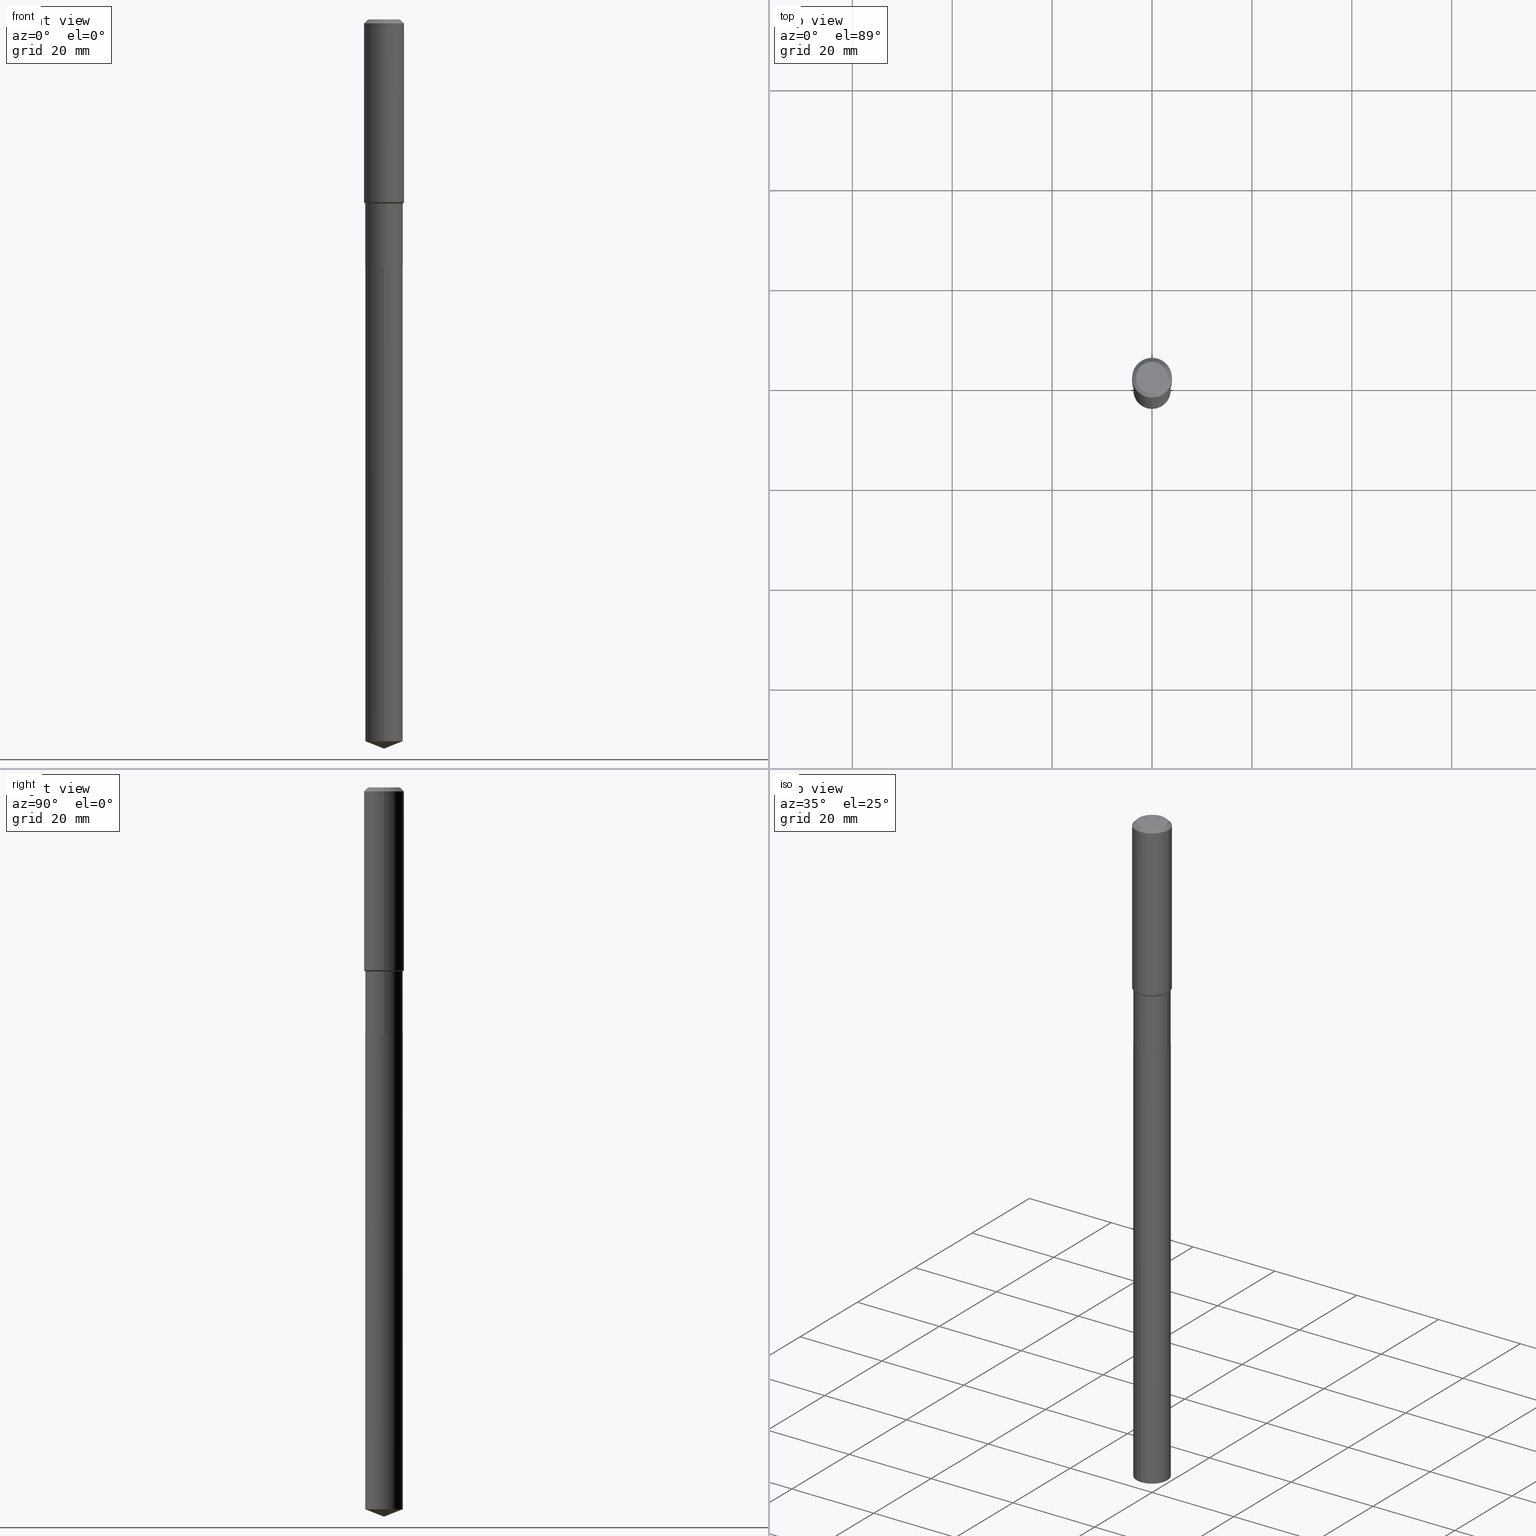
[diagram: canonical four-view strip — front | top / right | iso, engineering-drawing reading convention]
A machine part, canonical four-view strip (front | top / right | iso — engineering-drawing reading convention). The complete STEP part file that produces these views, byte-faithful:
ISO-10303-21;
HEADER;
FILE_DESCRIPTION (( 'STEP AP203' ),
    '1' );
FILE_NAME ('66754.STEP',
    '2024-04-25T05:22:18',
    ( '' ),
    ( '' ),
    'SwSTEP 2.0',
    'SolidWorks 2023',
    '' );
FILE_SCHEMA (( 'CONFIG_CONTROL_DESIGN' ));
ENDSEC;

DATA;
#1 = AXIS2_PLACEMENT_3D ( 'NONE', #55, #320, #208 ) ;
#2 = ORIENTED_EDGE ( 'NONE', *, *, #288, .F. ) ;
#3 = CARTESIAN_POINT ( 'NONE',  ( 1.391446264860343050E-28, -1.986576865855824587E-14, -5.689839118275454410 ) ) ;
#4 = ORIENTED_EDGE ( 'NONE', *, *, #178, .T. ) ;
#5 = ORIENTED_EDGE ( 'NONE', *, *, #93, .T. ) ;
#6 = CARTESIAN_POINT ( 'NONE',  ( 0.1476499999999999480, -6.099617898958972494E-15, -1.451700000000000212 ) ) ;
#7 = CONICAL_SURFACE ( 'NONE', #1, 0.1575000000000000011, 0.7853981633974449483 ) ;
#8 = VERTEX_POINT ( 'NONE', #17 ) ;
#9 = ADVANCED_FACE ( 'NONE', ( #127 ), #169, .F. ) ;
#10 = DIRECTION ( 'NONE',  ( 1.000000000000000000, -6.982962677686267499E-15, 4.876176775795936353E-29 ) ) ;
#11 = CC_DESIGN_PERSON_AND_ORGANIZATION_ASSIGNMENT ( #332, #215, ( #286 ) ) ;
#12 = ORIENTED_EDGE ( 'NONE', *, *, #407, .T. ) ;
#13 = DIRECTION ( 'NONE',  ( -2.445505750624633031E-29, 3.491428432303039480E-15, 1.000000000000000000 ) ) ;
#14 = ORIENTED_EDGE ( 'NONE', *, *, #477, .F. ) ;
#15 = CARTESIAN_POINT ( 'NONE',  ( 0.1476500000000000312, -7.799271014707815422E-15, -1.938499999999999890 ) ) ;
#16 = CIRCLE ( 'NONE', #474, 0.1476499999999999480 ) ;
#17 = CARTESIAN_POINT ( 'NONE',  ( 1.405676705459038823E-28, -2.006873062887787346E-14, -5.748000000000000220 ) ) ;
#18 = CARTESIAN_POINT ( 'NONE',  ( 3.550087065938963702E-29, -5.068583459598595410E-15, -1.451700000000000212 ) ) ;
#19 = DIRECTION ( 'NONE',  ( -2.445468806185136597E-29, 3.491481338843145583E-15, 1.000000000000000000 ) ) ;
#20 = CARTESIAN_POINT ( 'NONE',  ( 7.703226739483228723E-31, -1.099816621735597661E-16, -0.03150000000000019451 ) ) ;
#21 = DIRECTION ( 'NONE',  ( -2.445468806185136597E-29, 3.491481338843145583E-15, 1.000000000000000000 ) ) ;
#22 = AXIS2_PLACEMENT_3D ( 'NONE', #270, #267, #424 ) ;
#23 = EDGE_CURVE ( 'NONE', #56, #295, #155, .T. ) ;
#24 = FACE_OUTER_BOUND ( 'NONE', #297, .T. ) ;
#25 = CALENDAR_DATE ( 2024, 25, 4 ) ;
#26 = DATE_AND_TIME ( #72, #433 ) ;
#27 = ADVANCED_FACE ( 'NONE', ( #165 ), #167, .T. ) ;
#28 = DIRECTION ( 'NONE',  ( -0.7071067811865451302, 2.468850131082231817E-15, -0.7071067811865499042 ) ) ;
#29 = CIRCLE ( 'NONE', #70, 0.1260000000000000009 ) ;
#30 = COORDINATED_UNIVERSAL_TIME_OFFSET ( 5, 0, .BEHIND. ) ;
#31 = DIRECTION ( 'NONE',  ( -2.445468806185136597E-29, 3.491481338843145583E-15, 1.000000000000000000 ) ) ;
#32 = APPROVAL_ROLE ( '' ) ;
#33 = APPLICATION_CONTEXT ( 'configuration controlled 3d designs of mechanical parts and assemblies' ) ;
#34 = CARTESIAN_POINT ( 'NONE',  ( 0.1575000000000000011, -1.209798283909146741E-15, -0.03150000000000019451 ) ) ;
#35 = VERTEX_POINT ( 'NONE', #303 ) ;
#36 = CONICAL_SURFACE ( 'NONE', #306, 0.1471500000000000030, 0.7853981633975849475 ) ;
#37 = EDGE_LOOP ( 'NONE', ( #454, #150, #4, #352 ) ) ;
#38 = ORIENTED_EDGE ( 'NONE', *, *, #229, .F. ) ;
#39 = ORIENTED_EDGE ( 'NONE', *, *, #61, .T. ) ;
#40 = EDGE_CURVE ( 'NONE', #193, #35, #275, .T. ) ;
#41 = EDGE_CURVE ( 'NONE', #8, #203, #434, .T. ) ;
#42 = CARTESIAN_POINT ( 'NONE',  ( 1.049116349349926986E-15, 0.1476499999999801305, -5.689839118275454410 ) ) ;
#43 = VECTOR ( 'NONE', #48, 39.37007874015748854 ) ;
#44 = LOCAL_TIME ( 1, 22, 18.00000000000000000, #479 ) ;
#45 = VERTEX_POINT ( 'NONE', #91 ) ;
#46 = CARTESIAN_POINT ( 'NONE',  ( -0.1575000000000001676, -3.915087559588830636E-15, -1.441850000000000076 ) ) ;
#47 = DIRECTION ( 'NONE',  ( -2.445468806185136597E-29, 3.491481338843145583E-15, 1.000000000000000000 ) ) ;
#48 = DIRECTION ( 'NONE',  ( 6.611014441532060278E-15, 0.9304175679820263500, 0.3665012267242925281 ) ) ;
#49 = ORIENTED_EDGE ( 'NONE', *, *, #93, .F. ) ;
#50 = CARTESIAN_POINT ( 'NONE',  ( -0.1575000000000000011, -1.452982206470116048E-15, -0.03150000000000019451 ) ) ;
#51 = CARTESIAN_POINT ( 'NONE',  ( 7.703226739483228723E-31, -1.099816621735597661E-16, -0.03150000000000019451 ) ) ;
#52 = AXIS2_PLACEMENT_3D ( 'NONE', #345, #13, #219 ) ;
#53 = CC_DESIGN_APPROVAL ( #110, ( #286 ) ) ;
#54 = DIRECTION ( 'NONE',  ( 1.000000000000000000, 0.000000000000000000, 0.000000000000000000 ) ) ;
#55 = CARTESIAN_POINT ( 'NONE',  ( 7.703226739483228723E-31, -1.099816621735597661E-16, -0.03150000000000019451 ) ) ;
#56 = VERTEX_POINT ( 'NONE', #243 ) ;
#57 = DATE_AND_TIME ( #242, #299 ) ;
#58 = FACE_OUTER_BOUND ( 'NONE', #192, .T. ) ;
#59 = FACE_OUTER_BOUND ( 'NONE', #130, .T. ) ;
#60 = PRODUCT_DEFINITION_SHAPE ( 'NONE', 'NONE',  #210 ) ;
#61 = EDGE_CURVE ( 'NONE', #467, #257, #170, .T. ) ;
#62 = DIRECTION ( 'NONE',  ( -2.445505750624633031E-29, 3.491428432303039480E-15, 1.000000000000000000 ) ) ;
#63 = LOCAL_TIME ( 1, 22, 18.00000000000000000, #403 ) ;
#64 = DIRECTION ( 'NONE',  ( 2.438088387897960049E-29, -3.491481338843145188E-15, -1.000000000000000000 ) ) ;
#65 = DIRECTION ( 'NONE',  ( 1.000000000000000000, -6.982962677686266711E-15, 4.876176775795935793E-29 ) ) ;
#66 = ADVANCED_FACE ( 'NONE', ( #59 ), #171, .T. ) ;
#67 = APPROVAL_ROLE ( '' ) ;
#68 = DIRECTION ( 'NONE',  ( 1.000000000000000000, -6.982962677686269077E-15, 0.000000000000000000 ) ) ;
#69 = CALENDAR_DATE ( 2024, 25, 4 ) ;
#70 = AXIS2_PLACEMENT_3D ( 'NONE', #141, #75, #488 ) ;
#71 = DIRECTION ( 'NONE',  ( -2.445468806185136597E-29, 3.491481338843145583E-15, 1.000000000000000000 ) ) ;
#72 = CALENDAR_DATE ( 2024, 25, 4 ) ;
#73 = DIRECTION ( 'NONE',  ( -2.445505750624633031E-29, 3.491428432303039480E-15, 1.000000000000000000 ) ) ;
#74 = ADVANCED_FACE ( 'NONE', ( #198 ), #88, .T. ) ;
#75 = DIRECTION ( 'NONE',  ( -2.445468806185136597E-29, 3.491481338843145583E-15, 1.000000000000000000 ) ) ;
#76 = ORIENTED_EDGE ( 'NONE', *, *, #461, .F. ) ;
#77 = PERSON_AND_ORGANIZATION ( #363, #164 ) ;
#78 = EDGE_CURVE ( 'NONE', #35, #153, #445, .T. ) ;
#79 = ORIENTED_EDGE ( 'NONE', *, *, #176, .T. ) ;
#80 = CIRCLE ( 'NONE', #156, 0.1476500000000000035 ) ;
#81 = ORIENTED_EDGE ( 'NONE', *, *, #329, .F. ) ;
#82 = EDGE_LOOP ( 'NONE', ( #124, #85, #122, #264 ) ) ;
#83 = ADVANCED_FACE ( 'NONE', ( #484 ), #145, .T. ) ;
#84 = CARTESIAN_POINT ( 'NONE',  ( -1.031034439360329753E-15, -0.1476500000000068036, -1.938999999999999169 ) ) ;
#85 = ORIENTED_EDGE ( 'NONE', *, *, #90, .T. ) ;
#86 = FACE_OUTER_BOUND ( 'NONE', #95, .T. ) ;
#87 = CIRCLE ( 'NONE', #359, 0.1476500000000000035 ) ;
#88 = CYLINDRICAL_SURFACE ( 'NONE', #381, 0.1476500000000000035 ) ;
#89 = LINE ( 'NONE', #84, #232 ) ;
#90 = EDGE_CURVE ( 'NONE', #45, #335, #379, .T. ) ;
#91 = CARTESIAN_POINT ( 'NONE',  ( -0.1476500000000000312, -4.869293668123228136E-15, -1.938499999999999890 ) ) ;
#92 = DIRECTION ( 'NONE',  ( 1.000000000000000000, -6.982962677686269077E-15, 0.000000000000000000 ) ) ;
#93 = EDGE_CURVE ( 'NONE', #295, #257, #406, .T. ) ;
#94 = ORIENTED_EDGE ( 'NONE', *, *, #293, .T. ) ;
#95 = EDGE_LOOP ( 'NONE', ( #154, #117, #337, #418 ) ) ;
#96 = CONICAL_SURFACE ( 'NONE', #323, 0.1476499999999999480, 0.7853981633974500554 ) ;
#97 = LINE ( 'NONE', #356, #432 ) ;
#98 = EDGE_CURVE ( 'NONE', #116, #292, #87, .T. ) ;
#99 = CARTESIAN_POINT ( 'NONE',  ( 1.405662378405402245E-28, -2.006893580044040431E-14, -5.748000000000000220 ) ) ;
#100 = CC_DESIGN_PERSON_AND_ORGANIZATION_ASSIGNMENT ( #186, #179, ( #210 ) ) ;
#101 = CARTESIAN_POINT ( 'NONE',  ( 4.740541280789886638E-29, -6.768236575347436760E-15, -1.938499999999999890 ) ) ;
#102 =( NAMED_UNIT ( * ) PLANE_ANGLE_UNIT ( ) SI_UNIT ( $, .RADIAN. ) );
#103 = CIRCLE ( 'NONE', #224, 0.1575000000000000011 ) ;
#104 = DATE_AND_TIME ( #25, #63 ) ;
#105 = APPROVAL_STATUS ( 'not_yet_approved' ) ;
#106 = DIRECTION ( 'NONE',  ( -6.982962677686265922E-15, -1.000000000000000000, 3.498627837350027099E-15 ) ) ;
#107 = DIRECTION ( 'NONE',  ( -0.7071067811865486830, 7.493145998870357316E-15, 0.7071067811865462405 ) ) ;
#108 = CARTESIAN_POINT ( 'NONE',  ( 0.1575000000000001676, -6.134008990146578875E-15, -1.441850000000000076 ) ) ;
#109 = DIRECTION ( 'NONE',  ( -6.982962677686266711E-15, -1.000000000000000000, 3.700437512582815297E-15 ) ) ;
#110 = APPROVAL ( #105, 'UNSPECIFIED' ) ;
#111 = CONICAL_SURFACE ( 'NONE', #52, 99.94676754583932166, 1.195550537616117293 ) ;
#112 = CARTESIAN_POINT ( 'NONE',  ( 0.1476499999999999480, -6.099617898958972494E-15, -1.451700000000000212 ) ) ;
#113 = ADVANCED_FACE ( 'NONE', ( #362 ), #36, .T. ) ;
#114 = ORIENTED_EDGE ( 'NONE', *, *, #253, .T. ) ;
#115 = CARTESIAN_POINT ( 'NONE',  ( -0.1471500000000000030, -5.724418680345871607E-15, -1.938999999999999835 ) ) ;
#116 = VERTEX_POINT ( 'NONE', #212 ) ;
#117 = ORIENTED_EDGE ( 'NONE', *, *, #78, .T. ) ;
#118 = AXIS2_PLACEMENT_3D ( 'NONE', #129, #149, #420 ) ;
#119 = ADVANCED_FACE ( 'NONE', ( #24 ), #175, .F. ) ;
#120 = ORIENTED_EDGE ( 'NONE', *, *, #413, .F. ) ;
#121 = CARTESIAN_POINT ( 'NONE',  ( 3.525999198198039773E-29, -5.034192368410989029E-15, -1.441850000000000076 ) ) ;
#122 = ORIENTED_EDGE ( 'NONE', *, *, #184, .T. ) ;
#123 = CARTESIAN_POINT ( 'NONE',  ( 1.049116349349835281E-15, 0.1476499999999932311, -1.939000000000000279 ) ) ;
#124 = ORIENTED_EDGE ( 'NONE', *, *, #444, .F. ) ;
#125 = APPROVAL ( #490, 'UNSPECIFIED' ) ;
#126 = DIRECTION ( 'NONE',  ( 1.000000000000000000, -6.982962677686267499E-15, 0.000000000000000000 ) ) ;
#127 = FACE_OUTER_BOUND ( 'NONE', #301, .T. ) ;
#128 = EDGE_CURVE ( 'NONE', #295, #56, #29, .T. ) ;
#129 = CARTESIAN_POINT ( 'NONE',  ( 3.525999198198039773E-29, -5.034192368410989029E-15, -1.441850000000000076 ) ) ;
#130 = EDGE_LOOP ( 'NONE', ( #409, #136, #79, #416 ) ) ;
#131 = FACE_OUTER_BOUND ( 'NONE', #223, .T. ) ;
#132 = ORIENTED_EDGE ( 'NONE', *, *, #168, .T. ) ;
#133 = APPROVAL_ROLE ( '' ) ;
#134 = DIRECTION ( 'NONE',  ( -1.000000000000000000, 6.982962677686265922E-15, -4.876176775795935793E-29 ) ) ;
#135 = ADVANCED_FACE ( 'NONE', ( #233 ), #231, .T. ) ;
#136 = ORIENTED_EDGE ( 'NONE', *, *, #204, .T. ) ;
#137 = CIRCLE ( 'NONE', #341, 0.1476500000000000312 ) ;
#138 = PLANE ( 'NONE',  #456 ) ;
#139 = MANIFOLD_SOLID_BREP ( 'Body-Move/Copy2[2]', #285 ) ;
#140 = DIRECTION ( 'NONE',  ( -1.000000000000000000, 6.982962677686265922E-15, 0.000000000000000000 ) ) ;
#141 = CARTESIAN_POINT ( 'NONE',  ( -9.439721640706201686E-47, 1.347742071746726764E-32, 3.860086710912459732E-18 ) ) ;
#142 = SECURITY_CLASSIFICATION_LEVEL ( 'unclassified' ) ;
#143 = CARTESIAN_POINT ( 'NONE',  ( 4.741764015192979440E-29, -6.769982316016858264E-15, -1.938999999999999835 ) ) ;
#144 = CIRCLE ( 'NONE', #118, 0.1575000000000001676 ) ;
#145 = CYLINDRICAL_SURFACE ( 'NONE', #365, 0.1476500000000000035 ) ;
#146 = SHAPE_DEFINITION_REPRESENTATION ( #60, #412 ) ;
#147 = CARTESIAN_POINT ( 'NONE',  ( -8.222305854227753158E-28, 1.173889790807361205E-13, 33.62207874015748388 ) ) ;
#148 = EDGE_CURVE ( 'NONE', #153, #440, #144, .T. ) ;
#149 = DIRECTION ( 'NONE',  ( -2.445468806185136597E-29, 3.491481338843145583E-15, 1.000000000000000000 ) ) ;
#150 = ORIENTED_EDGE ( 'NONE', *, *, #386, .T. ) ;
#151 = AXIS2_PLACEMENT_3D ( 'NONE', #147, #448, #106 ) ;
#152 = ORIENTED_EDGE ( 'NONE', *, *, #41, .F. ) ;
#153 = VERTEX_POINT ( 'NONE', #46 ) ;
#154 = ORIENTED_EDGE ( 'NONE', *, *, #40, .T. ) ;
#155 = CIRCLE ( 'NONE', #449, 0.1260000000000000009 ) ;
#156 = AXIS2_PLACEMENT_3D ( 'NONE', #3, #73, #369 ) ;
#157 = DIRECTION ( 'NONE',  ( 1.000000000000000000, -6.982962677686265922E-15, 0.000000000000000000 ) ) ;
#158 = ORIENTED_EDGE ( 'NONE', *, *, #40, .F. ) ;
#159 = DIRECTION ( 'NONE',  ( 0.7071067811866441621, -2.468850131083269169E-15, 0.7071067811864508723 ) ) ;
#160 = CARTESIAN_POINT ( 'NONE',  ( 3.550087065938963702E-29, -5.068583459598595410E-15, -1.451700000000000212 ) ) ;
#161 = CARTESIAN_POINT ( 'NONE',  ( 1.391446264860343050E-28, -1.986576865855824587E-14, -5.689839118275454410 ) ) ;
#162 = ORIENTED_EDGE ( 'NONE', *, *, #128, .T. ) ;
#163 = CARTESIAN_POINT ( 'NONE',  ( 0.1476500000000000035, -1.031034439360377281E-15, 7.199675009462699686E-30 ) ) ;
#164 = ORGANIZATION ( 'UNSPECIFIED', 'UNSPECIFIED', '' ) ;
#165 = FACE_OUTER_BOUND ( 'NONE', #82, .T. ) ;
#166 = PERSON_AND_ORGANIZATION_ROLE ( 'design_owner' ) ;
#167 = CYLINDRICAL_SURFACE ( 'NONE', #317, 0.1476500000000000035 ) ;
#168 = EDGE_CURVE ( 'NONE', #440, #153, #190, .T. ) ;
#169 = PLANE ( 'NONE',  #22 ) ;
#170 = CIRCLE ( 'NONE', #209, 0.1575000000000000011 ) ;
#171 = CONICAL_SURFACE ( 'NONE', #230, 0.1476499999999999480, 0.7853981633974500554 ) ;
#172 = VECTOR ( 'NONE', #28, 39.37007874015748143 ) ;
#173 = LOCAL_TIME ( 1, 22, 18.00000000000000000, #30 ) ;
#174 = CARTESIAN_POINT ( 'NONE',  ( 0.1471500000000000030, -7.797525274038393129E-15, -1.938999999999999835 ) ) ;
#175 = PLANE ( 'NONE',  #189 ) ;
#176 = EDGE_CURVE ( 'NONE', #193, #440, #266, .T. ) ;
#177 = DIRECTION ( 'NONE',  ( -2.445468806185136597E-29, 3.491481338843145583E-15, 1.000000000000000000 ) ) ;
#178 = EDGE_CURVE ( 'NONE', #473, #335, #343, .T. ) ;
#179 = PERSON_AND_ORGANIZATION_ROLE ( 'creator' ) ;
#180 = AXIS2_PLACEMENT_3D ( 'NONE', #143, #351, #278 ) ;
#181 = DATE_TIME_ROLE ( 'classification_date' ) ;
#182 = DIRECTION ( 'NONE',  ( 0.7071067811865451302, -7.319954787623248157E-15, -0.7071067811865499042 ) ) ;
#183 = PERSON_AND_ORGANIZATION_ROLE ( 'creator' ) ;
#184 = EDGE_CURVE ( 'NONE', #335, #193, #220, .T. ) ;
#185 = CARTESIAN_POINT ( 'NONE',  ( 3.550087065938963702E-29, -5.068583459598595410E-15, -1.451700000000000212 ) ) ;
#186 = PERSON_AND_ORGANIZATION ( #363, #164 ) ;
#187 = CARTESIAN_POINT ( 'NONE',  ( -0.1471500000000000030, -5.721769453171760406E-15, -1.938999999999999835 ) ) ;
#188 = ORIENTED_EDGE ( 'NONE', *, *, #98, .F. ) ;
#189 = AXIS2_PLACEMENT_3D ( 'NONE', #480, #321, #478 ) ;
#190 = CIRCLE ( 'NONE', #318, 0.1575000000000001676 ) ;
#191 = ORIENTED_EDGE ( 'NONE', *, *, #288, .T. ) ;
#192 = EDGE_LOOP ( 'NONE', ( #221, #12, #191, #380 ) ) ;
#193 = VERTEX_POINT ( 'NONE', #6 ) ;
#194 = CARTESIAN_POINT ( 'NONE',  ( 4.741764015192979440E-29, -6.769982316016858264E-15, -1.938999999999999835 ) ) ;
#195 = CC_DESIGN_APPROVAL ( #245, ( #210 ) ) ;
#196 = EDGE_LOOP ( 'NONE', ( #132, #305, #81, #120 ) ) ;
#197 = DIRECTION ( 'NONE',  ( -2.445505750624633031E-29, 3.491428432303039480E-15, 1.000000000000000000 ) ) ;
#198 = FACE_OUTER_BOUND ( 'NONE', #372, .T. ) ;
#199 = CARTESIAN_POINT ( 'NONE',  ( 7.703226739483228723E-31, -1.099816621735597661E-16, -0.03150000000000019451 ) ) ;
#200 = DIRECTION ( 'NONE',  ( -2.445468806185136597E-29, 3.491481338843145583E-15, 1.000000000000000000 ) ) ;
#201 = CARTESIAN_POINT ( 'NONE',  ( 4.741764015192979440E-29, -6.769982316016858264E-15, -1.938999999999999835 ) ) ;
#202 = CIRCLE ( 'NONE', #180, 0.1471500000000000030 ) ;
#203 = VERTEX_POINT ( 'NONE', #263 ) ;
#204 = EDGE_CURVE ( 'NONE', #35, #193, #16, .T. ) ;
#205 = DIRECTION ( 'NONE',  ( 0.000000000000000000, 0.000000000000000000, 1.000000000000000000 ) ) ;
#206 = ORIENTED_EDGE ( 'NONE', *, *, #148, .T. ) ;
#207 = APPROVAL_DATE_TIME ( #57, #245 ) ;
#208 = DIRECTION ( 'NONE',  ( -1.000000000000000000, 6.982962677686265922E-15, 0.000000000000000000 ) ) ;
#209 = AXIS2_PLACEMENT_3D ( 'NONE', #51, #309, #394 ) ;
#210 = PRODUCT_DEFINITION ( 'UNKNOWN', '', #286, #370 ) ;
#211 = AXIS2_PLACEMENT_3D ( 'NONE', #194, #339, #126 ) ;
#212 = CARTESIAN_POINT ( 'NONE',  ( -1.031034439360329753E-15, -0.1476500000000068036, -1.938999999999999169 ) ) ;
#213 = CARTESIAN_POINT ( 'NONE',  ( 0.000000000000000000, 0.000000000000000000, 0.000000000000000000 ) ) ;
#214 = CARTESIAN_POINT ( 'NONE',  ( 4.741764015192979440E-29, -6.769982316016858264E-15, -1.938999999999999835 ) ) ;
#215 = PERSON_AND_ORGANIZATION_ROLE ( 'design_supplier' ) ;
#216 = CARTESIAN_POINT ( 'NONE',  ( -0.1575000000000000011, 9.898349595620272334E-16, -0.03150000000000019451 ) ) ;
#217 = CARTESIAN_POINT ( 'NONE',  ( 0.1575000000000000011, -1.190510096822576026E-15, -0.03150000000000019451 ) ) ;
#218 = AXIS2_PLACEMENT_3D ( 'NONE', #201, #395, #469 ) ;
#219 = DIRECTION ( 'NONE',  ( -6.982962677686265922E-15, -1.000000000000000000, 3.498627837350027099E-15 ) ) ;
#220 = LINE ( 'NONE', #163, #240 ) ;
#221 = ORIENTED_EDGE ( 'NONE', *, *, #253, .F. ) ;
#222 = ADVANCED_FACE ( 'NONE', ( #86 ), #96, .T. ) ;
#223 = EDGE_LOOP ( 'NONE', ( #459, #162 ) ) ;
#224 = AXIS2_PLACEMENT_3D ( 'NONE', #199, #347, #157 ) ;
#225 = EDGE_LOOP ( 'NONE', ( #38, #241, #376 ) ) ;
#226 = ORIENTED_EDGE ( 'NONE', *, *, #128, .F. ) ;
#227 = CARTESIAN_POINT ( 'NONE',  ( 0.000000000000000000, 0.000000000000000000, 0.000000000000000000 ) ) ;
#228 = ORIENTED_EDGE ( 'NONE', *, *, #329, .T. ) ;
#229 = EDGE_CURVE ( 'NONE', #8, #260, #271, .T. ) ;
#230 = AXIS2_PLACEMENT_3D ( 'NONE', #160, #462, #421 ) ;
#231 = CONICAL_SURFACE ( 'NONE', #211, 0.1471500000000000030, 0.7853981633975849475 ) ;
#232 = VECTOR ( 'NONE', #458, 39.37007874015748143 ) ;
#233 = FACE_OUTER_BOUND ( 'NONE', #37, .T. ) ;
#234 = CC_DESIGN_SECURITY_CLASSIFICATION ( #334, ( #286 ) ) ;
#235 = CARTESIAN_POINT ( 'NONE',  ( 0.000000000000000000, 0.000000000000000000, 0.000000000000000000 ) ) ;
#236 = DIRECTION ( 'NONE',  ( -2.445468806185136597E-29, 3.491481338843145583E-15, 1.000000000000000000 ) ) ;
#237 = DIRECTION ( 'NONE',  ( -2.445468806185136597E-29, 3.491481338843145583E-15, 1.000000000000000000 ) ) ;
#238 = ORIENTED_EDGE ( 'NONE', *, *, #446, .F. ) ;
#239 =( NAMED_UNIT ( * ) SI_UNIT ( $, .STERADIAN. ) SOLID_ANGLE_UNIT ( ) );
#240 = VECTOR ( 'NONE', #302, 39.37007874015748143 ) ;
#241 = ORIENTED_EDGE ( 'NONE', *, *, #41, .T. ) ;
#242 = CALENDAR_DATE ( 2024, 25, 4 ) ;
#243 = CARTESIAN_POINT ( 'NONE',  ( -0.1260000000000000009, 9.348441284752484904E-16, 3.860086710906114178E-18 ) ) ;
#244 = CARTESIAN_POINT ( 'NONE',  ( 4.741764015192979440E-29, -6.769982316016858264E-15, -1.938999999999999835 ) ) ;
#245 = APPROVAL ( #431, 'UNSPECIFIED' ) ;
#246 = CARTESIAN_POINT ( 'NONE',  ( 4.741764015192979440E-29, -6.769982316016858264E-15, -1.938999999999999835 ) ) ;
#247 = APPLICATION_PROTOCOL_DEFINITION ( 'international standard', 'config_control_design', 1994, #310 ) ;
#248 = VECTOR ( 'NONE', #464, 39.37007874015748143 ) ;
#249 = AXIS2_PLACEMENT_3D ( 'NONE', #244, #315, #281 ) ;
#250 = CALENDAR_DATE ( 2024, 25, 4 ) ;
#251 = LINE ( 'NONE', #216, #172 ) ;
#252 = APPROVAL_DATE_TIME ( #287, #110 ) ;
#253 = EDGE_CURVE ( 'NONE', #260, #292, #383, .T. ) ;
#254 = CARTESIAN_POINT ( 'NONE',  ( -0.1476500000000000035, 1.049116349349787949E-15, -7.262807660761367809E-30 ) ) ;
#255 = PRODUCT ( '66754', '66754', '', ( #396 ) ) ;
#256 = DIRECTION ( 'NONE',  ( 1.000000000000000000, -6.982962677686266711E-15, 0.000000000000000000 ) ) ;
#257 = VERTEX_POINT ( 'NONE', #34 ) ;
#258 = EDGE_LOOP ( 'NONE', ( #226, #5, #228, #238 ) ) ;
#259 = DIMENSIONAL_EXPONENTS ( 1.000000000000000000, 0.000000000000000000, 0.000000000000000000, 0.000000000000000000, 0.000000000000000000, 0.000000000000000000, 0.000000000000000000 ) ;
#260 = VERTEX_POINT ( 'NONE', #42 ) ;
#261 = AXIS2_PLACEMENT_3D ( 'NONE', #18, #277, #314 ) ;
#262 = VERTEX_POINT ( 'NONE', #187 ) ;
#263 = CARTESIAN_POINT ( 'NONE',  ( -1.031034439360237850E-15, -0.1476500000000198487, -5.689839118275454410 ) ) ;
#264 = ORIENTED_EDGE ( 'NONE', *, *, #204, .F. ) ;
#265 = CC_DESIGN_PERSON_AND_ORGANIZATION_ASSIGNMENT ( #425, #166, ( #255 ) ) ;
#266 = LINE ( 'NONE', #112, #276 ) ;
#267 = DIRECTION ( 'NONE',  ( -2.438088387897960049E-29, 3.491481338843145188E-15, 1.000000000000000000 ) ) ;
#268 = CIRCLE ( 'NONE', #249, 0.1476500000000000035 ) ;
#269 = CARTESIAN_POINT ( 'NONE',  ( 1.405676831090387688E-28, -2.006873062887787346E-14, -5.748000000000000220 ) ) ;
#270 = CARTESIAN_POINT ( 'NONE',  ( 4.741764015192979440E-29, -6.769982316016858264E-15, -1.938999999999999835 ) ) ;
#271 = LINE ( 'NONE', #269, #43 ) ;
#272 = ORIENTED_EDGE ( 'NONE', *, *, #386, .F. ) ;
#273 = EDGE_LOOP ( 'NONE', ( #457, #114, #188, #2 ) ) ;
#274 = COORDINATED_UNIVERSAL_TIME_OFFSET ( 5, 0, .BEHIND. ) ;
#275 = CIRCLE ( 'NONE', #261, 0.1476499999999999480 ) ;
#276 = VECTOR ( 'NONE', #466, 39.37007874015748854 ) ;
#277 = DIRECTION ( 'NONE',  ( -2.445468806185136597E-29, 3.491481338843145583E-15, 1.000000000000000000 ) ) ;
#278 = DIRECTION ( 'NONE',  ( 1.000000000000000000, -6.982962677686267499E-15, 0.000000000000000000 ) ) ;
#279 = ADVANCED_FACE ( 'NONE', ( #417 ), #111, .T. ) ;
#280 = DIRECTION ( 'NONE',  ( 1.000000000000000000, -6.982962677686267499E-15, 0.000000000000000000 ) ) ;
#281 = DIRECTION ( 'NONE',  ( -6.982962677686266711E-15, -1.000000000000000000, 3.700437512582815297E-15 ) ) ;
#282 = CARTESIAN_POINT ( 'NONE',  ( -4.719860820353100843E-47, 6.738710358733633822E-33, 1.930043355456229866E-18 ) ) ;
#283 = MANIFOLD_SOLID_BREP ( 'Body-Move/Copy2[1]', #439 ) ;
#284 = LINE ( 'NONE', #115, #382 ) ;
#285 = CLOSED_SHELL ( 'NONE', ( #113, #384, #399, #222, #74, #27, #66, #355, #368, #393, #9, #135 ) ) ;
#286 = PRODUCT_DEFINITION_FORMATION_WITH_SPECIFIED_SOURCE ( 'ANY', '', #255, .NOT_KNOWN. ) ;
#287 = DATE_AND_TIME ( #250, #173 ) ;
#288 = EDGE_CURVE ( 'NONE', #203, #116, #89, .T. ) ;
#289 = AXIS2_PLACEMENT_3D ( 'NONE', #101, #322, #68 ) ;
#290 = FACE_OUTER_BOUND ( 'NONE', #430, .T. ) ;
#291 = APPROVAL_PERSON_ORGANIZATION ( #325, #125, #32 ) ;
#292 = VERTEX_POINT ( 'NONE', #367 ) ;
#293 = EDGE_CURVE ( 'NONE', #473, #262, #405, .T. ) ;
#294 = LINE ( 'NONE', #326, #422 ) ;
#295 = VERTEX_POINT ( 'NONE', #408 ) ;
#296 = ORIENTED_EDGE ( 'NONE', *, *, #413, .T. ) ;
#297 = EDGE_LOOP ( 'NONE', ( #375, #411 ) ) ;
#298 = CIRCLE ( 'NONE', #361, 0.1476500000000000035 ) ;
#299 = LOCAL_TIME ( 1, 22, 18.00000000000000000, #274 ) ;
#300 = CYLINDRICAL_SURFACE ( 'NONE', #414, 0.1575000000000000844 ) ;
#301 = EDGE_LOOP ( 'NONE', ( #377, #272 ) ) ;
#302 = DIRECTION ( 'NONE',  ( -2.445468806185136877E-29, 3.491481338843145188E-15, 1.000000000000000000 ) ) ;
#303 = CARTESIAN_POINT ( 'NONE',  ( -0.1476499999999999480, -4.869293668123228136E-15, -1.451700000000000212 ) ) ;
#304 = DIRECTION ( 'NONE',  ( -6.982962677686266711E-15, -1.000000000000000000, 0.000000000000000000 ) ) ;
#305 = ORIENTED_EDGE ( 'NONE', *, *, #477, .T. ) ;
#306 = AXIS2_PLACEMENT_3D ( 'NONE', #358, #21, #280 ) ;
#307 = CC_DESIGN_DATE_AND_TIME_ASSIGNMENT ( #26, #181, ( #334 ) ) ;
#308 = DIRECTION ( 'NONE',  ( 1.000000000000000000, -6.982962677686267499E-15, 0.000000000000000000 ) ) ;
#309 = DIRECTION ( 'NONE',  ( -2.445468806185136597E-29, 3.491481338843145583E-15, 1.000000000000000000 ) ) ;
#310 = APPLICATION_CONTEXT ( 'configuration controlled 3d designs of mechanical parts and assemblies' ) ;
#311 = LENGTH_MEASURE_WITH_UNIT ( LENGTH_MEASURE( 0.02539999999999999897 ), #428 );
#312 = ORIENTED_EDGE ( 'NONE', *, *, #23, .F. ) ;
#313 = APPLICATION_PROTOCOL_DEFINITION ( 'international standard', 'config_control_design', 1994, #33 ) ;
#314 = DIRECTION ( 'NONE',  ( 1.000000000000000000, -6.982962677686266711E-15, 0.000000000000000000 ) ) ;
#315 = DIRECTION ( 'NONE',  ( -2.445505750624633031E-29, 3.491428432303039480E-15, 1.000000000000000000 ) ) ;
#316 = FACE_OUTER_BOUND ( 'NONE', #196, .T. ) ;
#317 = AXIS2_PLACEMENT_3D ( 'NONE', #235, #237, #354 ) ;
#318 = AXIS2_PLACEMENT_3D ( 'NONE', #121, #71, #452 ) ;
#319 = EDGE_CURVE ( 'NONE', #203, #260, #298, .T. ) ;
#320 = DIRECTION ( 'NONE',  ( 2.445468806185136597E-29, -3.491481338843145583E-15, -1.000000000000000000 ) ) ;
#321 = DIRECTION ( 'NONE',  ( 2.445505750624633031E-29, -3.491428432303039480E-15, -1.000000000000000000 ) ) ;
#322 = DIRECTION ( 'NONE',  ( -2.445468806185136597E-29, 3.491481338843145583E-15, 1.000000000000000000 ) ) ;
#323 = AXIS2_PLACEMENT_3D ( 'NONE', #387, #371, #460 ) ;
#324 = APPROVAL_PERSON_ORGANIZATION ( #77, #110, #67 ) ;
#325 = PERSON_AND_ORGANIZATION ( #363, #164 ) ;
#326 = CARTESIAN_POINT ( 'NONE',  ( 0.1575000000000000844, -1.099816621735587677E-15, 7.679978421878603638E-30 ) ) ;
#327 = APPROVAL_DATE_TIME ( #401, #125 ) ;
#328 = FACE_OUTER_BOUND ( 'NONE', #225, .T. ) ;
#329 = EDGE_CURVE ( 'NONE', #257, #467, #103, .T. ) ;
#330 = UNCERTAINTY_MEASURE_WITH_UNIT (LENGTH_MEASURE( 1.000000000000000082E-05 ), #349, 'distance_accuracy_value', 'NONE');
#331 = CARTESIAN_POINT ( 'NONE',  ( 0.1471500000000000030, -7.797525274038393129E-15, -1.938999999999999835 ) ) ;
#332 = PERSON_AND_ORGANIZATION ( #363, #164 ) ;
#333 = AXIS2_PLACEMENT_3D ( 'NONE', #213, #177, #426 ) ;
#334 = SECURITY_CLASSIFICATION ( '', '', #142 ) ;
#335 = VERTEX_POINT ( 'NONE', #15 ) ;
#336 = ORIENTED_EDGE ( 'NONE', *, *, #178, .F. ) ;
#337 = ORIENTED_EDGE ( 'NONE', *, *, #168, .F. ) ;
#338 = CC_DESIGN_PERSON_AND_ORGANIZATION_ASSIGNMENT ( #441, #183, ( #286 ) ) ;
#339 = DIRECTION ( 'NONE',  ( -2.445468806185136597E-29, 3.491481338843145583E-15, 1.000000000000000000 ) ) ;
#340 = ORIENTED_EDGE ( 'NONE', *, *, #446, .T. ) ;
#341 = AXIS2_PLACEMENT_3D ( 'NONE', #443, #19, #92 ) ;
#342 = CC_DESIGN_APPROVAL ( #125, ( #334 ) ) ;
#343 = LINE ( 'NONE', #331, #465 ) ;
#344 = CARTESIAN_POINT ( 'NONE',  ( -9.439721640706201686E-47, 1.347742071746726764E-32, 3.860086710912459732E-18 ) ) ;
#345 = CARTESIAN_POINT ( 'NONE',  ( -8.222305854227753158E-28, 1.173889790807361205E-13, 33.62207874015748388 ) ) ;
#346 = EDGE_LOOP ( 'NONE', ( #152, #453, #455 ) ) ;
#347 = DIRECTION ( 'NONE',  ( -2.445468806185136597E-29, 3.491481338843145583E-15, 1.000000000000000000 ) ) ;
#348 = DIRECTION ( 'NONE',  ( 1.000000000000000000, -6.982962677686265922E-15, 4.876281427513067258E-29 ) ) ;
#349 =( CONVERSION_BASED_UNIT ( 'INCH', #311 ) LENGTH_UNIT ( ) NAMED_UNIT ( #259 ) );
#350 = AXIS2_PLACEMENT_3D ( 'NONE', #390, #205, #54 ) ;
#351 = DIRECTION ( 'NONE',  ( -2.445468806185136597E-29, 3.491481338843145583E-15, 1.000000000000000000 ) ) ;
#352 = ORIENTED_EDGE ( 'NONE', *, *, #90, .F. ) ;
#353 = DIRECTION ( 'NONE',  ( 2.445468806185136597E-29, -3.491481338843145583E-15, -1.000000000000000000 ) ) ;
#354 = DIRECTION ( 'NONE',  ( 1.000000000000000000, -6.982962677686266711E-15, 4.876176775795935793E-29 ) ) ;
#355 = ADVANCED_FACE ( 'NONE', ( #290 ), #300, .T. ) ;
#356 = CARTESIAN_POINT ( 'NONE',  ( -0.1575000000000000844, 1.119104808822158392E-15, -7.747322767151481189E-30 ) ) ;
#357 = ADVANCED_FACE ( 'NONE', ( #58 ), #437, .T. ) ;
#358 = CARTESIAN_POINT ( 'NONE',  ( 4.741764015192979440E-29, -6.769982316016858264E-15, -1.938999999999999835 ) ) ;
#359 = AXIS2_PLACEMENT_3D ( 'NONE', #246, #62, #109 ) ;
#360 = FACE_OUTER_BOUND ( 'NONE', #389, .T. ) ;
#361 = AXIS2_PLACEMENT_3D ( 'NONE', #161, #423, #304 ) ;
#362 = FACE_OUTER_BOUND ( 'NONE', #388, .T. ) ;
#363 = PERSON ( 'UNSPECIFIED', 'UNSPECIFIED', 'UNSPECIFIED', ('UNSPECIFIED'), ('UNSPECIFIED'), ('UNSPECIFIED') ) ;
#364 = PERSON_AND_ORGANIZATION ( #363, #164 ) ;
#365 = AXIS2_PLACEMENT_3D ( 'NONE', #214, #442, #476 ) ;
#366 = AXIS2_PLACEMENT_3D ( 'NONE', #20, #353, #140 ) ;
#367 = CARTESIAN_POINT ( 'NONE',  ( 1.049116349349927775E-15, 0.1476499999999932311, -1.939000000000000279 ) ) ;
#368 = ADVANCED_FACE ( 'NONE', ( #360 ), #7, .T. ) ;
#369 = DIRECTION ( 'NONE',  ( -6.982962677686266711E-15, -1.000000000000000000, 0.000000000000000000 ) ) ;
#370 = DESIGN_CONTEXT ( 'detailed design', #33, 'design' ) ;
#371 = DIRECTION ( 'NONE',  ( -2.445468806185136597E-29, 3.491481338843145583E-15, 1.000000000000000000 ) ) ;
#372 = EDGE_LOOP ( 'NONE', ( #427, #489, #158, #392 ) ) ;
#373 = LINE ( 'NONE', #254, #450 ) ;
#374 = CONICAL_SURFACE ( 'NONE', #151, 99.94676754583932166, 1.195550537616117293 ) ;
#375 = ORIENTED_EDGE ( 'NONE', *, *, #98, .T. ) ;
#376 = ORIENTED_EDGE ( 'NONE', *, *, #407, .F. ) ;
#377 = ORIENTED_EDGE ( 'NONE', *, *, #293, .F. ) ;
#378 = DIRECTION ( 'NONE',  ( -2.445468806185136597E-29, 3.491481338843145583E-15, 1.000000000000000000 ) ) ;
#379 = CIRCLE ( 'NONE', #289, 0.1476500000000000312 ) ;
#380 = ORIENTED_EDGE ( 'NONE', *, *, #470, .F. ) ;
#381 = AXIS2_PLACEMENT_3D ( 'NONE', #385, #47, #65 ) ;
#382 = VECTOR ( 'NONE', #410, 39.37007874015748143 ) ;
#383 = LINE ( 'NONE', #123, #451 ) ;
#384 = ADVANCED_FACE ( 'NONE', ( #472 ), #482, .T. ) ;
#385 = CARTESIAN_POINT ( 'NONE',  ( 0.000000000000000000, 0.000000000000000000, 0.000000000000000000 ) ) ;
#386 = EDGE_CURVE ( 'NONE', #262, #473, #202, .T. ) ;
#387 = CARTESIAN_POINT ( 'NONE',  ( 3.550087065938963702E-29, -5.068583459598595410E-15, -1.451700000000000212 ) ) ;
#388 = EDGE_LOOP ( 'NONE', ( #94, #415, #76, #336 ) ) ;
#389 = EDGE_LOOP ( 'NONE', ( #49, #312, #340, #39 ) ) ;
#390 = CARTESIAN_POINT ( 'NONE',  ( 0.000000000000000000, 0.000000000000000000, 0.000000000000000000 ) ) ;
#391 = AXIS2_PLACEMENT_3D ( 'NONE', #463, #31, #308 ) ;
#392 = ORIENTED_EDGE ( 'NONE', *, *, #184, .F. ) ;
#393 = ADVANCED_FACE ( 'NONE', ( #131 ), #138, .F. ) ;
#394 = DIRECTION ( 'NONE',  ( 1.000000000000000000, -6.982962677686265922E-15, 0.000000000000000000 ) ) ;
#395 = DIRECTION ( 'NONE',  ( -2.445505750624633031E-29, 3.491428432303039480E-15, 1.000000000000000000 ) ) ;
#396 = MECHANICAL_CONTEXT ( 'NONE', #310, 'mechanical' ) ;
#397 = VECTOR ( 'NONE', #107, 39.37007874015748854 ) ;
#398 =( GEOMETRIC_REPRESENTATION_CONTEXT ( 3 ) GLOBAL_UNCERTAINTY_ASSIGNED_CONTEXT ( ( #330 ) ) GLOBAL_UNIT_ASSIGNED_CONTEXT ( ( #349, #102, #239 ) ) REPRESENTATION_CONTEXT ( 'NONE', 'WORKASPACE' ) );
#399 = ADVANCED_FACE ( 'NONE', ( #316 ), #475, .T. ) ;
#400 = CARTESIAN_POINT ( 'NONE',  ( -0.1476499999999999480, -4.019467110248807855E-15, -1.451700000000000212 ) ) ;
#401 = DATE_AND_TIME ( #69, #44 ) ;
#402 = ADVANCED_FACE ( 'NONE', ( #328 ), #374, .T. ) ;
#403 = COORDINATED_UNIVERSAL_TIME_OFFSET ( 5, 0, .BEHIND. ) ;
#404 = DIRECTION ( 'NONE',  ( -2.445468806185136877E-29, 3.491481338843145188E-15, 1.000000000000000000 ) ) ;
#405 = CIRCLE ( 'NONE', #391, 0.1471500000000000030 ) ;
#406 = LINE ( 'NONE', #217, #481 ) ;
#407 = EDGE_CURVE ( 'NONE', #260, #203, #80, .T. ) ;
#408 = CARTESIAN_POINT ( 'NONE',  ( 0.1260000000000000009, -1.027466422270894443E-15, 3.860086710919128072E-18 ) ) ;
#409 = ORIENTED_EDGE ( 'NONE', *, *, #78, .F. ) ;
#410 = DIRECTION ( 'NONE',  ( -0.7071067811866441621, 7.493145998870704414E-15, 0.7071067811864508723 ) ) ;
#411 = ORIENTED_EDGE ( 'NONE', *, *, #470, .T. ) ;
#412 = ADVANCED_BREP_SHAPE_REPRESENTATION ( '66754', ( #283, #139, #350 ), #398 ) ;
#413 = EDGE_CURVE ( 'NONE', #440, #257, #294, .T. ) ;
#414 = AXIS2_PLACEMENT_3D ( 'NONE', #227, #378, #10 ) ;
#415 = ORIENTED_EDGE ( 'NONE', *, *, #419, .T. ) ;
#416 = ORIENTED_EDGE ( 'NONE', *, *, #148, .F. ) ;
#417 = FACE_OUTER_BOUND ( 'NONE', #346, .T. ) ;
#418 = ORIENTED_EDGE ( 'NONE', *, *, #176, .F. ) ;
#419 = EDGE_CURVE ( 'NONE', #262, #45, #284, .T. ) ;
#420 = DIRECTION ( 'NONE',  ( 1.000000000000000000, -6.982962677686267499E-15, 0.000000000000000000 ) ) ;
#421 = DIRECTION ( 'NONE',  ( 1.000000000000000000, -6.982962677686266711E-15, 0.000000000000000000 ) ) ;
#422 = VECTOR ( 'NONE', #404, 39.37007874015748143 ) ;
#423 = DIRECTION ( 'NONE',  ( -2.445505750624633031E-29, 3.491428432303039480E-15, 1.000000000000000000 ) ) ;
#424 = DIRECTION ( 'NONE',  ( 1.000000000000000000, -6.982962677686265922E-15, 4.876176775795935793E-29 ) ) ;
#425 = PERSON_AND_ORGANIZATION ( #363, #164 ) ;
#426 = DIRECTION ( 'NONE',  ( 1.000000000000000000, -6.982962677686267499E-15, 4.876176775795936353E-29 ) ) ;
#427 = ORIENTED_EDGE ( 'NONE', *, *, #461, .T. ) ;
#428 =( LENGTH_UNIT ( ) NAMED_UNIT ( * ) SI_UNIT ( $, .METRE. ) );
#429 = CC_DESIGN_DATE_AND_TIME_ASSIGNMENT ( #104, #485, ( #210 ) ) ;
#430 = EDGE_LOOP ( 'NONE', ( #14, #206, #296, #471 ) ) ;
#431 = APPROVAL_STATUS ( 'not_yet_approved' ) ;
#432 = VECTOR ( 'NONE', #435, 39.37007874015748143 ) ;
#433 = LOCAL_TIME ( 1, 22, 18.00000000000000000, #447 ) ;
#434 = LINE ( 'NONE', #99, #248 ) ;
#435 = DIRECTION ( 'NONE',  ( -2.445468806185136877E-29, 3.491481338843145188E-15, 1.000000000000000000 ) ) ;
#436 = PRODUCT_RELATED_PRODUCT_CATEGORY ( 'detail', '', ( #255 ) ) ;
#437 = CYLINDRICAL_SURFACE ( 'NONE', #218, 0.1476500000000000035 ) ;
#438 = PERSON_AND_ORGANIZATION_ROLE ( 'classification_officer' ) ;
#439 = CLOSED_SHELL ( 'NONE', ( #83, #279, #402, #357, #119 ) ) ;
#440 = VERTEX_POINT ( 'NONE', #108 ) ;
#441 = PERSON_AND_ORGANIZATION ( #363, #164 ) ;
#442 = DIRECTION ( 'NONE',  ( -2.445505750624633031E-29, 3.491428432303039480E-15, 1.000000000000000000 ) ) ;
#443 = CARTESIAN_POINT ( 'NONE',  ( 4.740541280789886638E-29, -6.768236575347436760E-15, -1.938499999999999890 ) ) ;
#444 = EDGE_CURVE ( 'NONE', #45, #35, #373, .T. ) ;
#445 = LINE ( 'NONE', #400, #397 ) ;
#446 = EDGE_CURVE ( 'NONE', #56, #467, #251, .T. ) ;
#447 = COORDINATED_UNIVERSAL_TIME_OFFSET ( 5, 0, .BEHIND. ) ;
#448 = DIRECTION ( 'NONE',  ( -2.445505750624633031E-29, 3.491428432303039480E-15, 1.000000000000000000 ) ) ;
#449 = AXIS2_PLACEMENT_3D ( 'NONE', #344, #200, #348 ) ;
#450 = VECTOR ( 'NONE', #487, 39.37007874015748143 ) ;
#451 = VECTOR ( 'NONE', #197, 39.37007874015748143 ) ;
#452 = DIRECTION ( 'NONE',  ( 1.000000000000000000, -6.982962677686267499E-15, 0.000000000000000000 ) ) ;
#453 = ORIENTED_EDGE ( 'NONE', *, *, #229, .T. ) ;
#454 = ORIENTED_EDGE ( 'NONE', *, *, #419, .F. ) ;
#455 = ORIENTED_EDGE ( 'NONE', *, *, #319, .F. ) ;
#456 = AXIS2_PLACEMENT_3D ( 'NONE', #282, #64, #134 ) ;
#457 = ORIENTED_EDGE ( 'NONE', *, *, #319, .T. ) ;
#458 = DIRECTION ( 'NONE',  ( -2.445505750624633031E-29, 3.491428432303039480E-15, 1.000000000000000000 ) ) ;
#459 = ORIENTED_EDGE ( 'NONE', *, *, #23, .T. ) ;
#460 = DIRECTION ( 'NONE',  ( 1.000000000000000000, -6.982962677686266711E-15, 0.000000000000000000 ) ) ;
#461 = EDGE_CURVE ( 'NONE', #335, #45, #137, .T. ) ;
#462 = DIRECTION ( 'NONE',  ( -2.445468806185136597E-29, 3.491481338843145583E-15, 1.000000000000000000 ) ) ;
#463 = CARTESIAN_POINT ( 'NONE',  ( 4.741764015192979440E-29, -6.769982316016858264E-15, -1.938999999999999835 ) ) ;
#464 = DIRECTION ( 'NONE',  ( -6.497071151882114314E-15, -0.9304175679820237965, 0.3665012267242991340 ) ) ;
#465 = VECTOR ( 'NONE', #159, 39.37007874015748143 ) ;
#466 = DIRECTION ( 'NONE',  ( 0.7071067811865486830, -2.468850131082269682E-15, 0.7071067811865462405 ) ) ;
#467 = VERTEX_POINT ( 'NONE', #50 ) ;
#468 = PERSON_AND_ORGANIZATION ( #363, #164 ) ;
#469 = DIRECTION ( 'NONE',  ( -6.982962677686266711E-15, -1.000000000000000000, 3.700437512582815297E-15 ) ) ;
#470 = EDGE_CURVE ( 'NONE', #292, #116, #268, .T. ) ;
#471 = ORIENTED_EDGE ( 'NONE', *, *, #61, .F. ) ;
#472 = FACE_OUTER_BOUND ( 'NONE', #258, .T. ) ;
#473 = VERTEX_POINT ( 'NONE', #174 ) ;
#474 = AXIS2_PLACEMENT_3D ( 'NONE', #185, #236, #256 ) ;
#475 = CYLINDRICAL_SURFACE ( 'NONE', #333, 0.1575000000000000844 ) ;
#476 = DIRECTION ( 'NONE',  ( -6.982962677686266711E-15, -1.000000000000000000, 3.700437512582815297E-15 ) ) ;
#477 = EDGE_CURVE ( 'NONE', #153, #467, #97, .T. ) ;
#478 = DIRECTION ( 'NONE',  ( 6.982962677686265922E-15, 1.000000000000000000, -3.491428432303039480E-15 ) ) ;
#479 = COORDINATED_UNIVERSAL_TIME_OFFSET ( 5, 0, .BEHIND. ) ;
#480 = CARTESIAN_POINT ( 'NONE',  ( 4.741764015192979440E-29, -6.769982316016858264E-15, -1.938999999999999835 ) ) ;
#481 = VECTOR ( 'NONE', #182, 39.37007874015748143 ) ;
#482 = CONICAL_SURFACE ( 'NONE', #366, 0.1575000000000000011, 0.7853981633974449483 ) ;
#483 = APPROVAL_PERSON_ORGANIZATION ( #468, #245, #133 ) ;
#484 = FACE_OUTER_BOUND ( 'NONE', #273, .T. ) ;
#485 = DATE_TIME_ROLE ( 'creation_date' ) ;
#486 = CC_DESIGN_PERSON_AND_ORGANIZATION_ASSIGNMENT ( #364, #438, ( #334 ) ) ;
#487 = DIRECTION ( 'NONE',  ( -2.445468806185136877E-29, 3.491481338843145188E-15, 1.000000000000000000 ) ) ;
#488 = DIRECTION ( 'NONE',  ( 1.000000000000000000, -6.982962677686265922E-15, 4.876281427513067258E-29 ) ) ;
#489 = ORIENTED_EDGE ( 'NONE', *, *, #444, .T. ) ;
#490 = APPROVAL_STATUS ( 'not_yet_approved' ) ;
ENDSEC;
END-ISO-10303-21;
